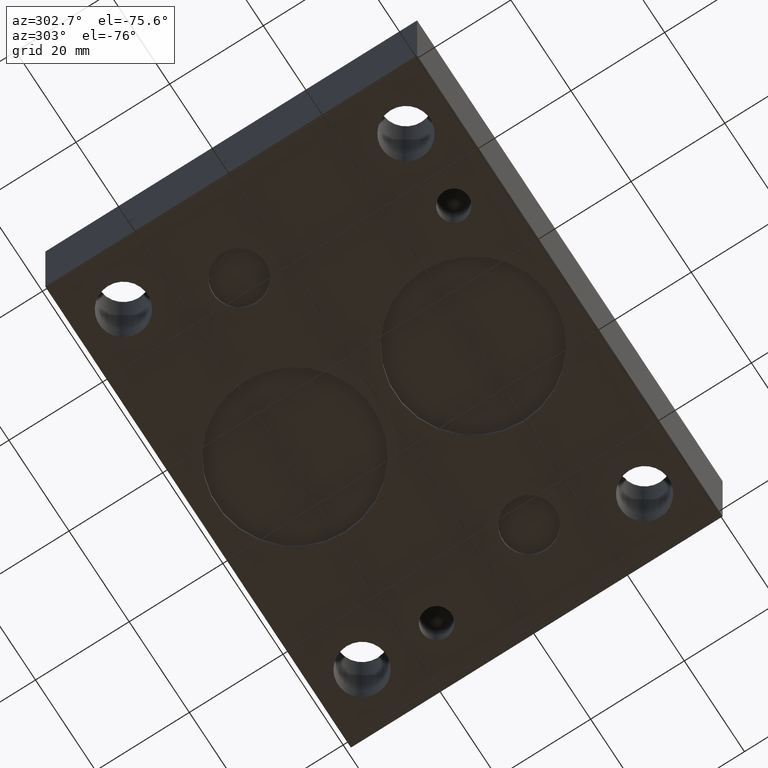
[diagram: clean part render]
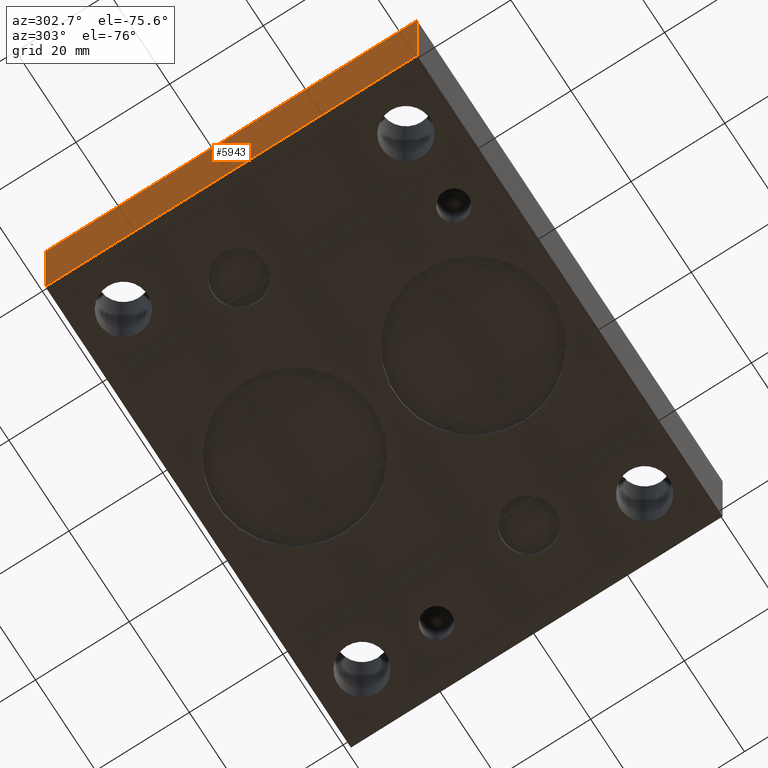
[diagram: same view with one face highlighted and labeled with its STEP entity id]
A machine part, auxiliary view. The second image highlights one B-rep face of the part: STEP entity #5943.
In plain terms, the highlighted planar face has unit normal (-1, 0, 0).
Its self-contained STEP definition (entity closure, byte-faithful):
#301=PLANE('',#6211);
#598=FACE_OUTER_BOUND('',#920,.T.);
#920=EDGE_LOOP('',(#5259,#5260,#5261,#5262));
#1548=LINE('',#10009,#2164);
#1549=LINE('',#10011,#2165);
#1550=LINE('',#10013,#2166);
#1551=LINE('',#10014,#2167);
#2164=VECTOR('',#7325,10.);
#2165=VECTOR('',#7326,10.);
#2166=VECTOR('',#7327,10.);
#2167=VECTOR('',#7328,10.);
#2872=VERTEX_POINT('',#10007);
#2873=VERTEX_POINT('',#10008);
#2874=VERTEX_POINT('',#10010);
#2875=VERTEX_POINT('',#10012);
#3678=EDGE_CURVE('',#2872,#2873,#1548,.T.);
#3679=EDGE_CURVE('',#2873,#2874,#1549,.T.);
#3680=EDGE_CURVE('',#2875,#2874,#1550,.T.);
#3681=EDGE_CURVE('',#2872,#2875,#1551,.T.);
#5259=ORIENTED_EDGE('',*,*,#3678,.T.);
#5260=ORIENTED_EDGE('',*,*,#3679,.T.);
#5261=ORIENTED_EDGE('',*,*,#3680,.F.);
#5262=ORIENTED_EDGE('',*,*,#3681,.F.);
#5943=ADVANCED_FACE('',(#598),#301,.T.);
#6211=AXIS2_PLACEMENT_3D('',#10006,#7323,#7324);
#7323=DIRECTION('center_axis',(-1.,0.,0.));
#7324=DIRECTION('ref_axis',(0.,-1.,0.));
#7325=DIRECTION('',(0.,-1.,0.));
#7326=DIRECTION('',(0.,0.,1.));
#7327=DIRECTION('',(0.,-1.,0.));
#7328=DIRECTION('',(0.,0.,1.));
#10006=CARTESIAN_POINT('Origin',(0.,79.375,0.));
#10007=CARTESIAN_POINT('',(0.,79.375,0.));
#10008=CARTESIAN_POINT('',(0.,0.,0.));
#10009=CARTESIAN_POINT('',(0.,79.375,0.));
#10010=CARTESIAN_POINT('',(0.,0.,25.4));
#10011=CARTESIAN_POINT('',(0.,0.,0.));
#10012=CARTESIAN_POINT('',(0.,79.375,25.4));
#10013=CARTESIAN_POINT('',(0.,79.375,25.4));
#10014=CARTESIAN_POINT('',(0.,79.375,0.));